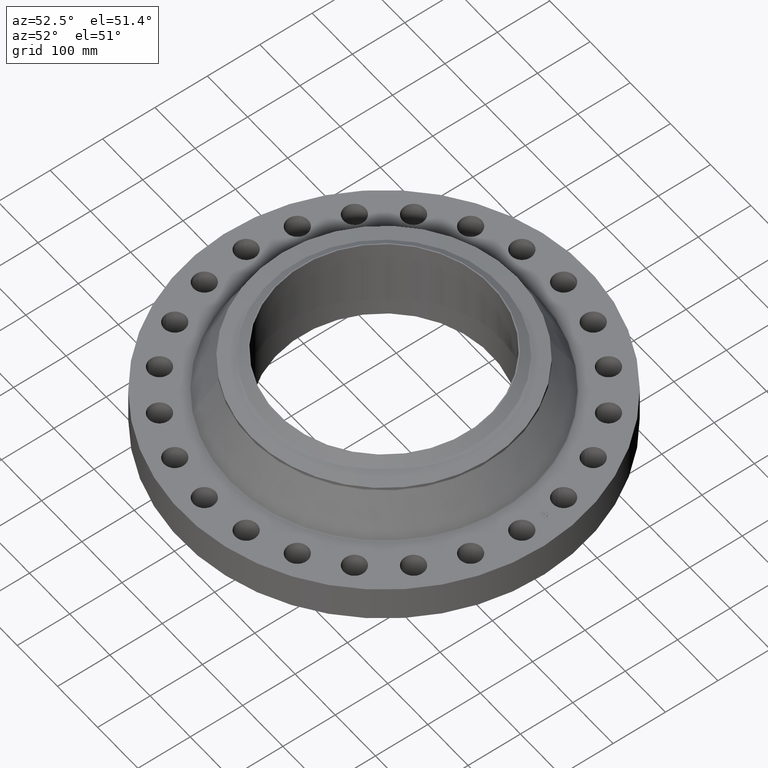
[diagram: clean part render]
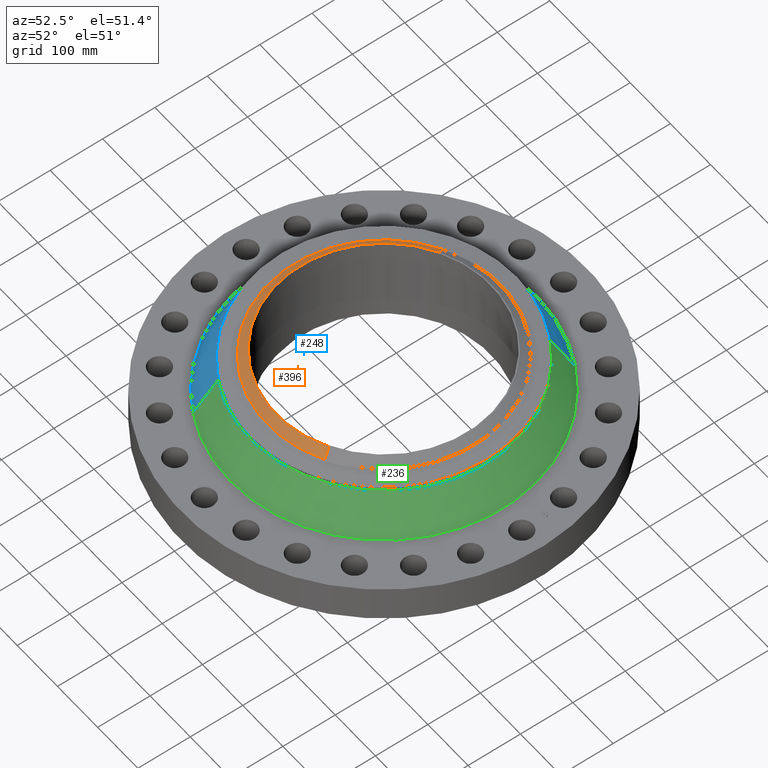
[diagram: same view with three faces highlighted in distinct colors, each labeled with its STEP entity id]
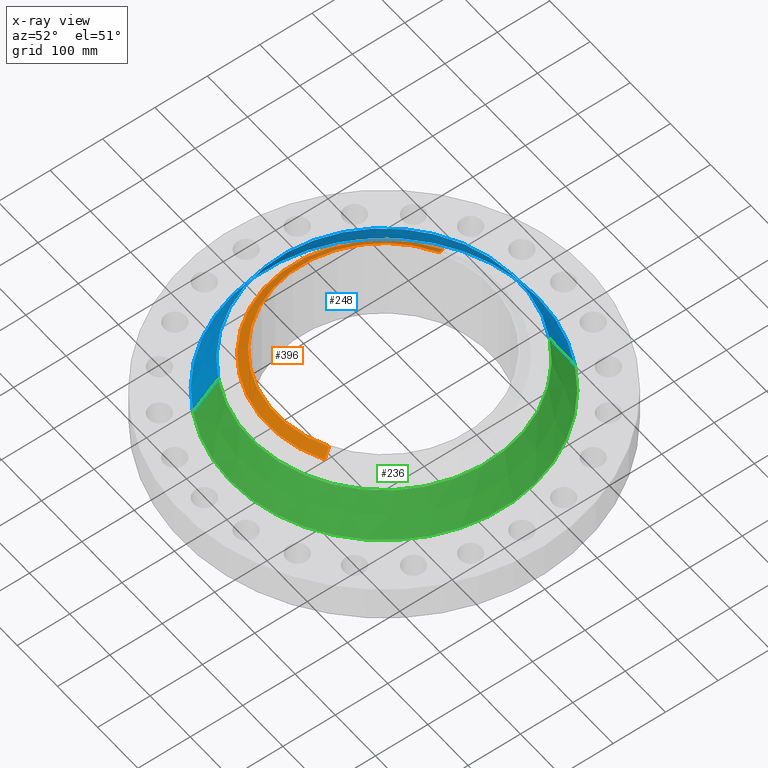
[diagram: x-ray of the same camera — body ghosted, the three highlighted faces saturated]
A machine part, auxiliary view with three faces highlighted in distinct colors.
The next image is the same camera in x-ray (body ghosted, the three faces saturated) — at least one of them is partly hidden behind the body in this view.
Their STEP definitions:

[orange] entity #396 — the highlighted conical surface has half-angle 52.5 deg.
#343=AXIS2_PLACEMENT_3D('Cone Axis2P3D',#340,#341,#342) ;
#382=AXIS2_PLACEMENT_3D('Circle Axis2P3D',#380,#381,$) ;
#387=AXIS2_PLACEMENT_3D('Circle Axis2P3D',#385,#386,$) ;
#340=CARTESIAN_POINT('Axis2P3D Location',(0.,0.,6.62000000003)) ;
#349=CARTESIAN_POINT('Vertex',(3.88801654296,-7.11696654369,6.62000000003)) ;
#351=CARTESIAN_POINT('Vertex',(-3.88801654296,7.11696654369,6.62000000003)) ;
#354=CARTESIAN_POINT('Line Origine',(4.04295784551,-7.4005846956,6.37201437259)) ;
#358=CARTESIAN_POINT('Vertex',(4.19789914806,-7.6842028475,6.12402874516)) ;
#365=CARTESIAN_POINT('Vertex',(-4.19789914806,7.6842028475,6.12402874516)) ;
#368=CARTESIAN_POINT('Line Origine',(-4.04295784551,7.4005846956,6.37201437259)) ;
#380=CARTESIAN_POINT('Axis2P3D Location',(0.,0.,6.62000000003)) ;
#385=CARTESIAN_POINT('Axis2P3D Location',(0.,0.,6.12402874516)) ;
#341=DIRECTION('Axis2P3D Direction',(-0.,-0.,-0.0393700787402)) ;
#342=DIRECTION('Axis2P3D XDirection',(0.0188750212049,-0.0345504945626,0.)) ;
#355=DIRECTION('Vector Direction',(0.014974561121,-0.02741075027,-0.023966985394)) ;
#369=DIRECTION('Vector Direction',(-0.014974561121,0.02741075027,-0.023966985394)) ;
#381=DIRECTION('Axis2P3D Direction',(0.,0.,-0.0393700787402)) ;
#386=DIRECTION('Axis2P3D Direction',(0.,0.,-0.0393700787402)) ;
#356=VECTOR('Line Direction',#355,0.0393700787402) ;
#370=VECTOR('Line Direction',#369,0.0393700787402) ;
#391=ORIENTED_EDGE('',*,*,#384,.F.) ;
#392=ORIENTED_EDGE('',*,*,#372,.T.) ;
#393=ORIENTED_EDGE('',*,*,#389,.T.) ;
#394=ORIENTED_EDGE('',*,*,#360,.F.) ;
#396=ADVANCED_FACE('PartBody',(#395),#344,.T.) ;
#383=CIRCLE('generated circle',#382,8.10974015751) ;
#388=CIRCLE('generated circle',#387,8.75610248106) ;
#344=CONICAL_SURFACE('Cone',#343,8.10974015751,0.916297857297) ;
#360=EDGE_CURVE('',#350,#359,#357,.T.) ;
#372=EDGE_CURVE('',#352,#366,#371,.T.) ;
#384=EDGE_CURVE('',#352,#350,#383,.F.) ;
#389=EDGE_CURVE('',#366,#359,#388,.F.) ;
#390=EDGE_LOOP('',(#391,#392,#393,#394)) ;
#395=FACE_OUTER_BOUND('',#390,.T.) ;
#357=LINE('Line',#354,#356) ;
#371=LINE('Line',#368,#370) ;
#350=VERTEX_POINT('',#349) ;
#352=VERTEX_POINT('',#351) ;
#359=VERTEX_POINT('',#358) ;
#366=VERTEX_POINT('',#365) ;

[blue] entity #248 — the highlighted conical surface has half-angle 28.237 deg.
#196=AXIS2_PLACEMENT_3D('Circle Axis2P3D',#194,#195,$) ;
#209=AXIS2_PLACEMENT_3D('Cone Axis2P3D',#206,#207,#208) ;
#239=AXIS2_PLACEMENT_3D('Circle Axis2P3D',#237,#238,$) ;
#167=CARTESIAN_POINT('Vertex',(5.52588094688,10.1150572249,2.81322627407)) ;
#174=CARTESIAN_POINT('Vertex',(-5.52588094688,-10.1150572249,2.81322627407)) ;
#194=CARTESIAN_POINT('Axis2P3D Location',(0.,0.,2.81322627407)) ;
#206=CARTESIAN_POINT('Axis2P3D Location',(0.,0.,5.65492453083)) ;
#211=CARTESIAN_POINT('Line Origine',(5.16006816647,9.44544142192,4.23407540245)) ;
#215=CARTESIAN_POINT('Vertex',(4.79425538606,8.77582561894,5.65492453083)) ;
#222=CARTESIAN_POINT('Vertex',(-4.79425538606,-8.77582561894,5.65492453083)) ;
#225=CARTESIAN_POINT('Line Origine',(-5.16006816647,-9.44544142192,4.23407540245)) ;
#237=CARTESIAN_POINT('Axis2P3D Location',(0.,0.,5.65492453083)) ;
#195=DIRECTION('Axis2P3D Direction',(0.,0.,-0.0393700787402)) ;
#207=DIRECTION('Axis2P3D Direction',(0.,0.,-0.0393700787402)) ;
#208=DIRECTION('Axis2P3D XDirection',(-0.0188750212049,-0.0345504945626,0.)) ;
#212=DIRECTION('Vector Direction',(0.00893004400849,0.0163463359119,-0.034685079159)) ;
#226=DIRECTION('Vector Direction',(-0.00893004400849,-0.0163463359119,-0.034685079159)) ;
#238=DIRECTION('Axis2P3D Direction',(0.,0.,-0.0393700787402)) ;
#213=VECTOR('Line Direction',#212,0.0393700787402) ;
#227=VECTOR('Line Direction',#226,0.0393700787402) ;
#243=ORIENTED_EDGE('',*,*,#198,.F.) ;
#244=ORIENTED_EDGE('',*,*,#229,.T.) ;
#245=ORIENTED_EDGE('',*,*,#241,.T.) ;
#246=ORIENTED_EDGE('',*,*,#217,.F.) ;
#248=ADVANCED_FACE('PartBody',(#247),#210,.T.) ;
#197=CIRCLE('generated circle',#196,11.5260462823) ;
#240=CIRCLE('generated circle',#239,10.) ;
#210=CONICAL_SURFACE('Cone',#209,10.,0.492822486499) ;
#198=EDGE_CURVE('',#175,#168,#197,.T.) ;
#217=EDGE_CURVE('',#168,#216,#214,.F.) ;
#229=EDGE_CURVE('',#175,#223,#228,.F.) ;
#241=EDGE_CURVE('',#223,#216,#240,.T.) ;
#242=EDGE_LOOP('',(#243,#244,#245,#246)) ;
#247=FACE_OUTER_BOUND('',#242,.T.) ;
#214=LINE('Line',#211,#213) ;
#228=LINE('Line',#225,#227) ;
#168=VERTEX_POINT('',#167) ;
#175=VERTEX_POINT('',#174) ;
#216=VERTEX_POINT('',#215) ;
#223=VERTEX_POINT('',#222) ;

[green] entity #236 — the highlighted conical surface has half-angle 28.237 deg.
#172=AXIS2_PLACEMENT_3D('Circle Axis2P3D',#170,#171,$) ;
#209=AXIS2_PLACEMENT_3D('Cone Axis2P3D',#206,#207,#208) ;
#220=AXIS2_PLACEMENT_3D('Circle Axis2P3D',#218,#219,$) ;
#167=CARTESIAN_POINT('Vertex',(5.52588094688,10.1150572249,2.81322627407)) ;
#170=CARTESIAN_POINT('Axis2P3D Location',(0.,0.,2.81322627407)) ;
#174=CARTESIAN_POINT('Vertex',(-5.52588094688,-10.1150572249,2.81322627407)) ;
#206=CARTESIAN_POINT('Axis2P3D Location',(0.,0.,5.65492453083)) ;
#211=CARTESIAN_POINT('Line Origine',(5.16006816647,9.44544142192,4.23407540245)) ;
#215=CARTESIAN_POINT('Vertex',(4.79425538606,8.77582561894,5.65492453083)) ;
#218=CARTESIAN_POINT('Axis2P3D Location',(0.,0.,5.65492453083)) ;
#222=CARTESIAN_POINT('Vertex',(-4.79425538606,-8.77582561894,5.65492453083)) ;
#225=CARTESIAN_POINT('Line Origine',(-5.16006816647,-9.44544142192,4.23407540245)) ;
#171=DIRECTION('Axis2P3D Direction',(0.,0.,-0.0393700787402)) ;
#207=DIRECTION('Axis2P3D Direction',(0.,0.,-0.0393700787402)) ;
#208=DIRECTION('Axis2P3D XDirection',(-0.0188750212049,-0.0345504945626,0.)) ;
#212=DIRECTION('Vector Direction',(0.00893004400849,0.0163463359119,-0.034685079159)) ;
#219=DIRECTION('Axis2P3D Direction',(0.,0.,-0.0393700787402)) ;
#226=DIRECTION('Vector Direction',(-0.00893004400849,-0.0163463359119,-0.034685079159)) ;
#213=VECTOR('Line Direction',#212,0.0393700787402) ;
#227=VECTOR('Line Direction',#226,0.0393700787402) ;
#231=ORIENTED_EDGE('',*,*,#176,.F.) ;
#232=ORIENTED_EDGE('',*,*,#217,.T.) ;
#233=ORIENTED_EDGE('',*,*,#224,.T.) ;
#234=ORIENTED_EDGE('',*,*,#229,.F.) ;
#236=ADVANCED_FACE('PartBody',(#235),#210,.T.) ;
#173=CIRCLE('generated circle',#172,11.5260462823) ;
#221=CIRCLE('generated circle',#220,10.) ;
#210=CONICAL_SURFACE('Cone',#209,10.,0.492822486499) ;
#176=EDGE_CURVE('',#168,#175,#173,.T.) ;
#217=EDGE_CURVE('',#168,#216,#214,.F.) ;
#224=EDGE_CURVE('',#216,#223,#221,.T.) ;
#229=EDGE_CURVE('',#175,#223,#228,.F.) ;
#230=EDGE_LOOP('',(#231,#232,#233,#234)) ;
#235=FACE_OUTER_BOUND('',#230,.T.) ;
#214=LINE('Line',#211,#213) ;
#228=LINE('Line',#225,#227) ;
#168=VERTEX_POINT('',#167) ;
#175=VERTEX_POINT('',#174) ;
#216=VERTEX_POINT('',#215) ;
#223=VERTEX_POINT('',#222) ;